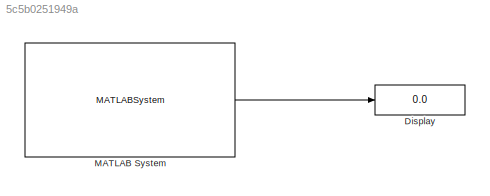
MODEL slx_5c5b0251949a
KIND model
CONFIG AbsTol = auto
CONFIG EnableMultiTasking = off
CONFIG FixedStep = 0.0005
CONFIG MaxStep = auto
CONFIG MinStep = auto
CONFIG RelTol = 1e-3
CONFIG SampleTimeConstraint = Unconstrained
CONFIG SolverName = FixedStepDiscrete
CONFIG StartTime = 0.0
CONFIG StopTime = inf
BLOCK [Display] Display
  Decimation = 1
  Format = long
BLOCK [MATLABSystem] MATLAB System
  MaskDisplay = color('white');plot([100,100,100,100]*1,[100,100,100,100]*1);plot([100,100,100,100]*0,[100,100,100,100]*0);color('blue');text(38, 92, 'IO Device Builder','horizontalAlignment', 'right');\ncolor('black');text(52,50,' ESP23_ANALOG_READ','horizontalAlignment','center');\nport_label('output',1,'V');
  MaskType = ESP23_ANALOG_READ
  PIN = int8( 0 )
  SampleTime = -1
  System = ESP23_ANALOG_READ
LINE MATLAB System:1 -> Display:1
